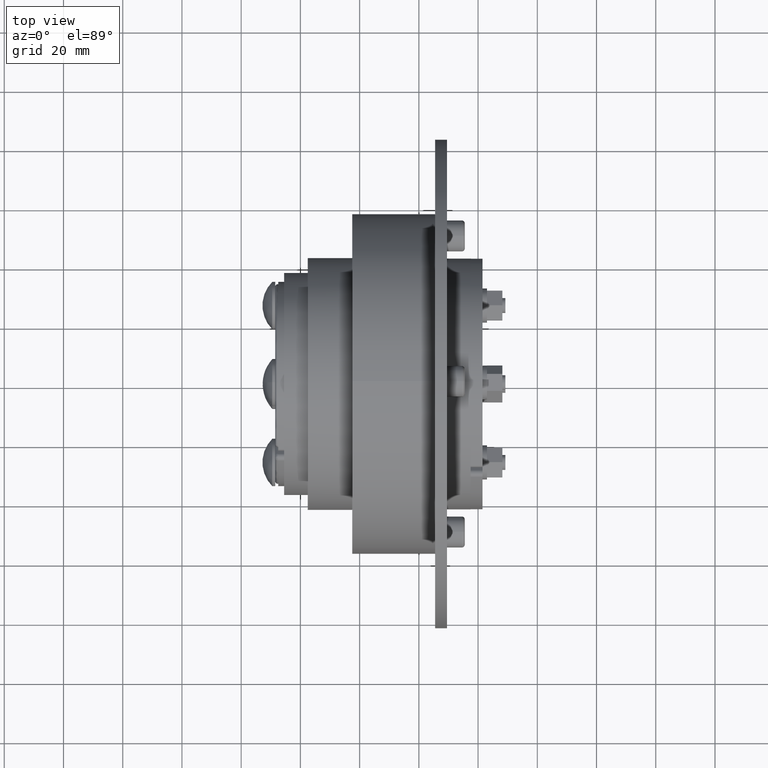
[diagram: clean part render]
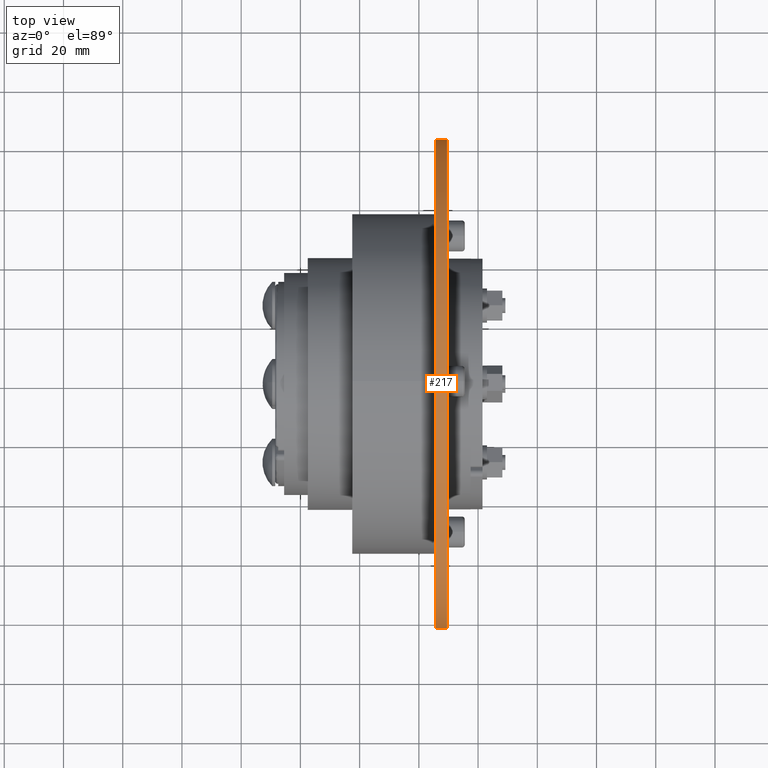
[diagram: same view with one face highlighted and labeled with its STEP entity id]
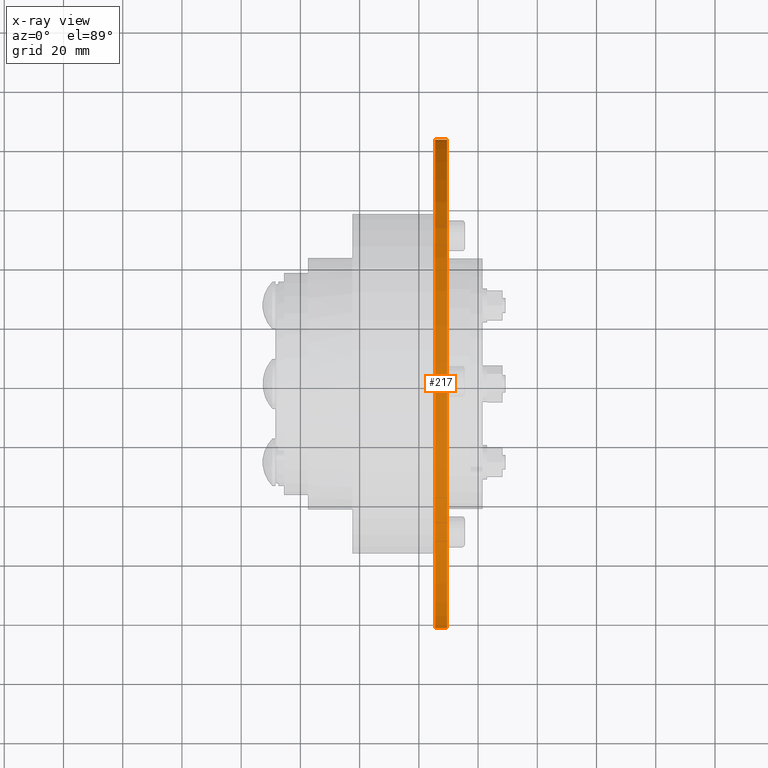
[diagram: x-ray of the same camera — body ghosted, the highlighted face saturated]
A machine part, top view. The second image highlights one B-rep face of the part: STEP entity #217.
The next image is the same camera in x-ray: the body ghosted, the highlighted face saturated — about 0% of this face is hidden behind the body in this view.
In plain terms, the highlighted cylindrical surface (partial cylindrical patch) has radius 82.5 mm, axis along (-1, 0, 0).
Its self-contained STEP definition (entity closure, byte-faithful):
#176=CARTESIAN_POINT('',(0.0,0.0,0.0));
#177=DIRECTION('',(1.0,0.0,0.0));
#178=DIRECTION('',(0.0,-1.0,0.0));
#179=AXIS2_PLACEMENT_3D('',#176,#177,#178);
#180=CYLINDRICAL_SURFACE('',#179,82.500000000000000);
#181=CARTESIAN_POINT('',(0.0,-82.500000000000000,1.010300E-014));
#182=VERTEX_POINT('',#181);
#183=CARTESIAN_POINT('',(4.0,-82.500000000000000,1.010300E-014));
#184=VERTEX_POINT('',#183);
#185=CARTESIAN_POINT('',(0.0,-82.500000000000000,1.010300E-014));
#186=DIRECTION('',(1.0,0.0,0.0));
#187=VECTOR('',#186,4.0);
#188=LINE('',#185,#187);
#189=EDGE_CURVE('',#182,#184,#188,.T.);
#190=ORIENTED_EDGE('',*,*,#189,.F.);
#191=CARTESIAN_POINT('',(0.0,82.500000000000000,1.010300E-014));
#192=VERTEX_POINT('',#191);
#193=CARTESIAN_POINT('',(0.0,0.0,0.0));
#194=DIRECTION('',(-1.0,0.0,0.0));
#195=DIRECTION('',(0.0,-1.0,0.0));
#196=AXIS2_PLACEMENT_3D('',#193,#194,#195);
#197=CIRCLE('',#196,82.500000000000000);
#198=EDGE_CURVE('',#192,#182,#197,.T.);
#199=ORIENTED_EDGE('',*,*,#198,.F.);
#200=CARTESIAN_POINT('',(4.0,82.500000000000000,1.010300E-014));
#201=VERTEX_POINT('',#200);
#202=CARTESIAN_POINT('',(4.0,82.500000000000000,1.010300E-014));
#203=DIRECTION('',(-1.0,0.0,0.0));
#204=VECTOR('',#203,4.0);
#205=LINE('',#202,#204);
#206=EDGE_CURVE('',#201,#192,#205,.T.);
#207=ORIENTED_EDGE('',*,*,#206,.F.);
#208=CARTESIAN_POINT('',(4.0,0.0,0.0));
#209=DIRECTION('',(-1.0,0.0,0.0));
#210=DIRECTION('',(0.0,-1.0,0.0));
#211=AXIS2_PLACEMENT_3D('',#208,#209,#210);
#212=CIRCLE('',#211,82.500000000000000);
#213=EDGE_CURVE('',#201,#184,#212,.T.);
#214=ORIENTED_EDGE('',*,*,#213,.T.);
#215=EDGE_LOOP('',(#190,#199,#207,#214));
#216=FACE_OUTER_BOUND('',#215,.T.);
#217=ADVANCED_FACE('',(#216),#180,.T.);